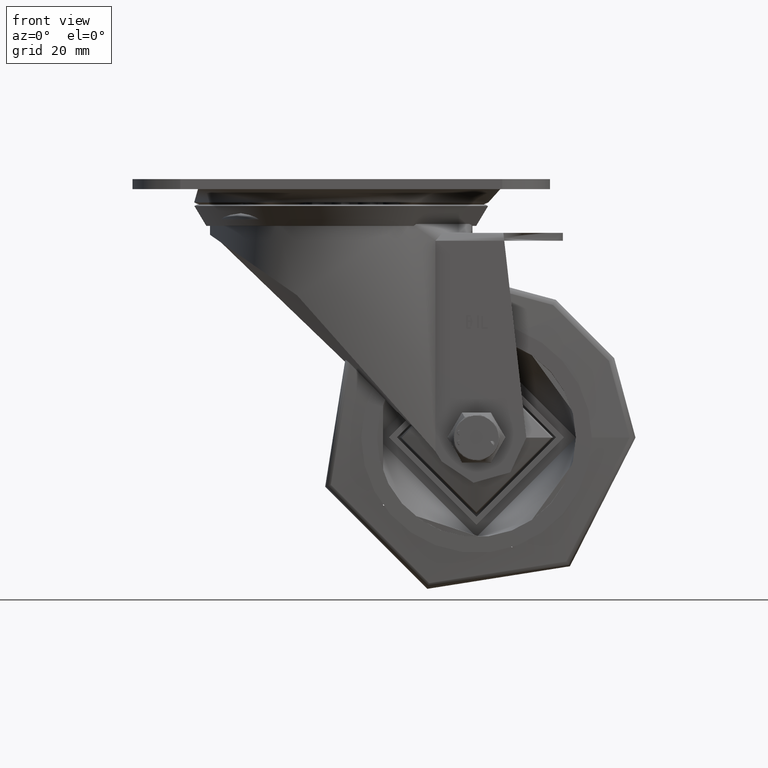
[diagram: clean part render]
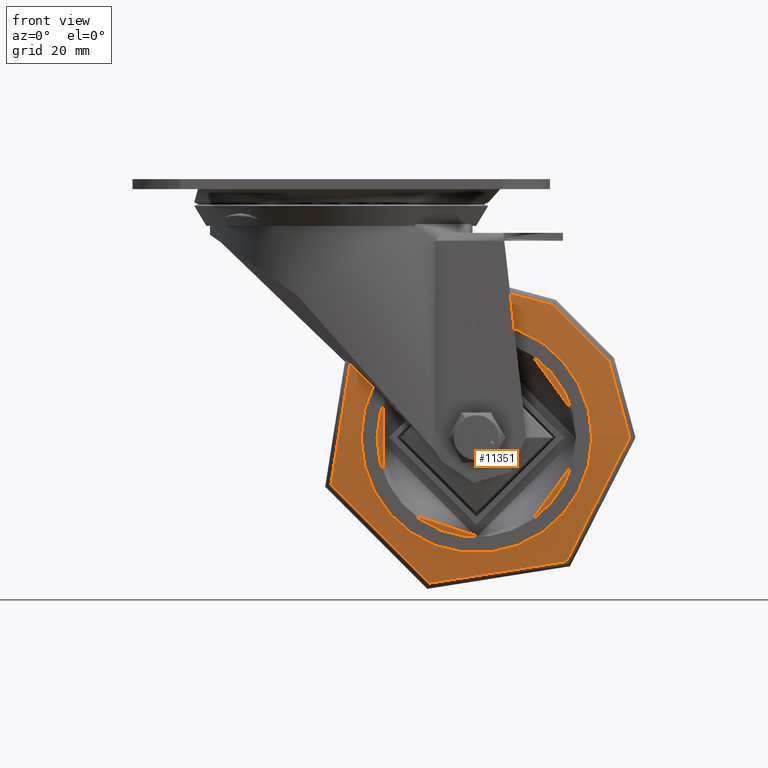
[diagram: same view with one face highlighted and labeled with its STEP entity id]
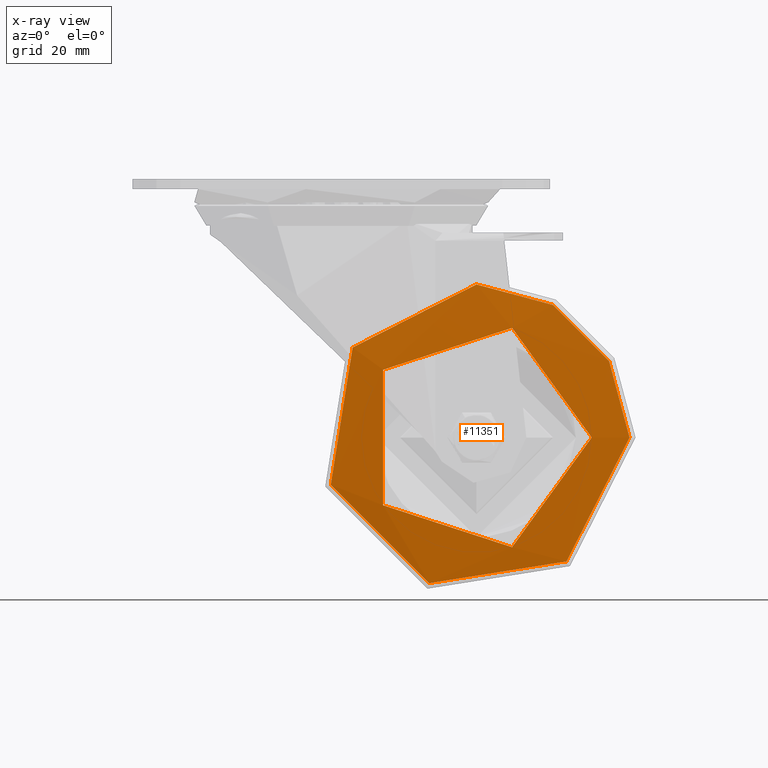
[diagram: x-ray of the same camera — body ghosted, the highlighted face saturated]
A machine part, front view. The second image highlights one B-rep face of the part: STEP entity #11351.
The next image is the same camera in x-ray: the body ghosted, the highlighted face saturated — about 0% of this face is hidden behind the body in this view.
In plain terms, the highlighted conical surface has half-angle 84.806 deg.
Its self-contained STEP definition (entity closure, byte-faithful):
#1469=CONICAL_SURFACE('',#12266,33.7530800951492,1.48013643959415);
#1487=FACE_OUTER_BOUND('',#2193,.T.);
#2193=EDGE_LOOP('',(#7800,#7801,#7802,#7803,#7804));
#3044=LINE('',#16277,#3777);
#3777=VECTOR('',#13380,33.7530800951492);
#4507=CIRCLE('',#12250,29.);
#4517=CIRCLE('',#12264,38.5061601902984);
#4518=CIRCLE('',#12265,38.5061601902984);
#4970=VERTEX_POINT('',#16247);
#4978=VERTEX_POINT('',#16271);
#4979=VERTEX_POINT('',#16273);
#6081=EDGE_CURVE('',#4970,#4970,#4507,.T.);
#6094=EDGE_CURVE('',#4978,#4979,#4517,.T.);
#6095=EDGE_CURVE('',#4979,#4978,#4518,.T.);
#6096=EDGE_CURVE('',#4979,#4970,#3044,.T.);
#7800=ORIENTED_EDGE('',*,*,#6095,.F.);
#7801=ORIENTED_EDGE('',*,*,#6096,.T.);
#7802=ORIENTED_EDGE('',*,*,#6081,.T.);
#7803=ORIENTED_EDGE('',*,*,#6096,.F.);
#7804=ORIENTED_EDGE('',*,*,#6094,.F.);
#11351=ADVANCED_FACE('',(#1487),#1469,.T.);
#12250=AXIS2_PLACEMENT_3D('',#16248,#13343,#13344);
#12264=AXIS2_PLACEMENT_3D('',#16274,#13374,#13375);
#12265=AXIS2_PLACEMENT_3D('',#16275,#13376,#13377);
#12266=AXIS2_PLACEMENT_3D('',#16276,#13378,#13379);
#13343=DIRECTION('center_axis',(1.,-6.50129834452202E-17,0.));
#13344=DIRECTION('ref_axis',(6.50129834452202E-17,1.,0.));
#13374=DIRECTION('center_axis',(1.,-6.50129834452202E-17,0.));
#13375=DIRECTION('ref_axis',(6.50129834452202E-17,1.,0.));
#13376=DIRECTION('center_axis',(1.,-6.50129834452202E-17,0.));
#13377=DIRECTION('ref_axis',(6.50129834452202E-17,1.,0.));
#13378=DIRECTION('center_axis',(1.,-6.50129834452202E-17,0.));
#13379=DIRECTION('ref_axis',(6.50129834452202E-17,1.,0.));
#13380=DIRECTION('',(-0.0905357460425199,0.995893206467704,1.21961742759327E-16));
#16247=CARTESIAN_POINT('',(-17.5,-29.,3.55147571752732E-15));
#16248=CARTESIAN_POINT('Origin',(-17.5,1.13772721029135E-15,0.));
#16271=CARTESIAN_POINT('',(-16.6358036190638,-4.60929610884459E-15,38.5061601902984));
#16273=CARTESIAN_POINT('',(-16.6358036190638,-38.5061601902985,4.71564458245042E-15));
#16274=CARTESIAN_POINT('Origin',(-16.6358036190638,1.08154322528413E-15,
0.));
#16275=CARTESIAN_POINT('Origin',(-16.6358036190638,1.08154322528413E-15,
0.));
#16276=CARTESIAN_POINT('Origin',(-17.0679018095319,1.10963521778774E-15,
0.));
#16277=CARTESIAN_POINT('',(-17.0679018095319,-33.7530800951492,-4.13356014998887E-15));